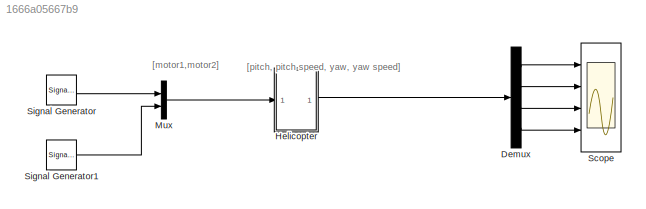
MODEL slx_1666a05667b9
KIND model
CONFIG AbsTol = auto
CONFIG FixedStep = auto
CONFIG InitFcn = hwinit
CONFIG MaxStep = auto
CONFIG MinStep = auto
CONFIG RelTol = 1e-3
CONFIG SampleTimeConstraint = Unconstrained
CONFIG Solver = ode45
CONFIG SolverMode = SingleTasking
CONFIG SolverName = ode45
CONFIG StartTime = 0.0
CONFIG StopTime = 10.0
BLOCK [Demux] Demux
  DisplayOption = bar
  Ports = [1, 4]
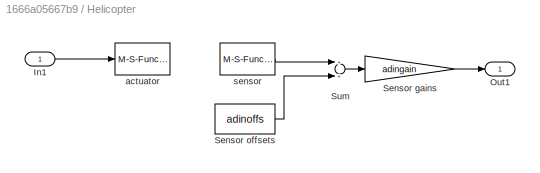
BLOCK [SubSystem] Helicopter
  Ports = [1, 1]
  RequestExecContextInheritance = off
  Variant = off
BLOCK [Inport] Helicopter/In1
  IconDisplay = Port number
BLOCK [Outport] Helicopter/Out1
  IconDisplay = Port number
BLOCK [Gain] Helicopter/Sensor gains
  Gain = adingain
  OutDataTypeStr = Inherit: Inherit via internal rule
  ParamDataTypeStr = Inherit: Inherit via internal rule
  SaturateOnIntegerOverflow = off
BLOCK [Constant] Helicopter/Sensor offsets
  Value = adinoffs
BLOCK [Sum] Helicopter/Sum
  InputSameDT = off
  OutDataTypeStr = Inherit: Inherit via internal rule
  Ports = [2, 1]
  SaturateOnIntegerOverflow = off
BLOCK [M-S-Function] Helicopter/actuator
  FunctionName = sf_heli_out
  Parameters = HeliMexHandle,Ts
  Ports = [1]
BLOCK [M-S-Function] Helicopter/sensor
  FunctionName = sf_heli_in
  Parameters = HeliMexHandle
  Ports = [0, 1]
BLOCK [Mux] Mux
  DisplayOption = bar
  Inputs = 2
  Ports = [2, 1]
BLOCK [Scope] Scope
  NumInputPorts = 4
  Ports = [4]
  ScopeSpecificationString = Simulink.scopes.TimeScopeBlockCfg('CurrentConfiguration', extmgr.ConfigurationSet(extmgr.Configuration('Core','General UI',true),extmgr.Configuration('Core','Source UI',true),extmgr.Configuration('Sources','WiredSimulink',true,'DataLogging',true,'DataLoggingVariableName','y','DataLoggingSaveFormat','StructureWithTime','DataLoggingDecimation','1','DataLoggingDecimateData',true),extmgr.Configuration...<+3774ch>
BLOCK [SignalGenerator] Signal Generator
  Amplitude = 0.2
  Frequency = 1/20
  Ports = [0, 1]
  WaveForm = square
BLOCK [SignalGenerator] Signal Generator1
  Amplitude = .2
  Frequency = 1/20
  Ports = [0, 1]
  WaveForm = square
ANNOTATION (root): [motor1,motor2]
ANNOTATION (root): [pitch, pitch speed, yaw, yaw speed]
LINE Demux:1 -> Scope:1
LINE Demux:2 -> Scope:2
LINE Demux:3 -> Scope:3
LINE Demux:4 -> Scope:4
LINE Helicopter/In1:1 -> Helicopter/actuator:1
LINE Helicopter/Sensor gains:1 -> Helicopter/Out1:1
LINE Helicopter/Sensor offsets:1 -> Helicopter/Sum:2
LINE Helicopter/Sum:1 -> Helicopter/Sensor gains:1
LINE Helicopter/sensor:1 -> Helicopter/Sum:1
LINE Helicopter:1 -> Demux:1
LINE Mux:1 -> Helicopter:1
LINE Signal Generator1:1 -> Mux:2
LINE Signal Generator:1 -> Mux:1
